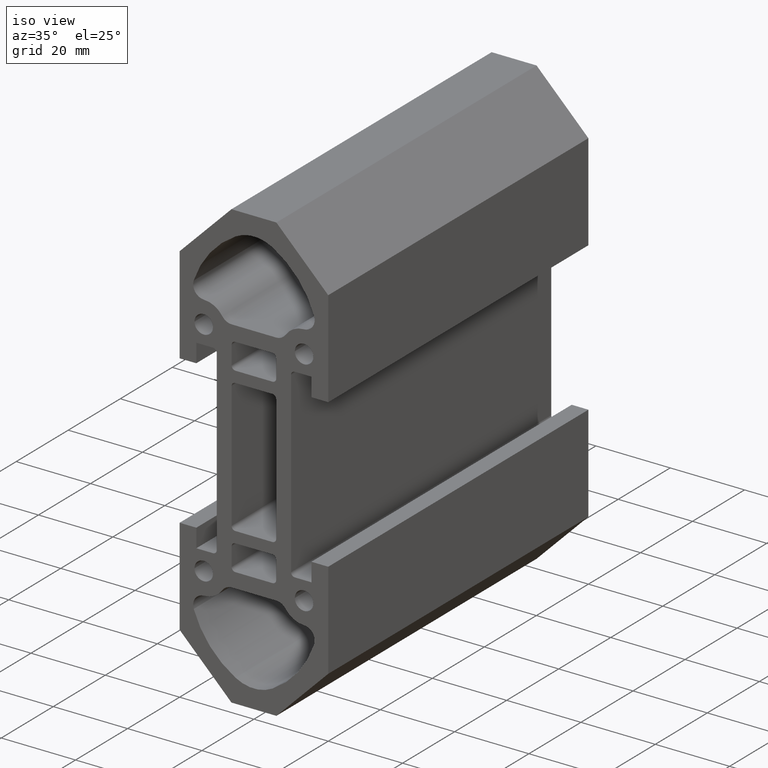
[diagram: clean part render]
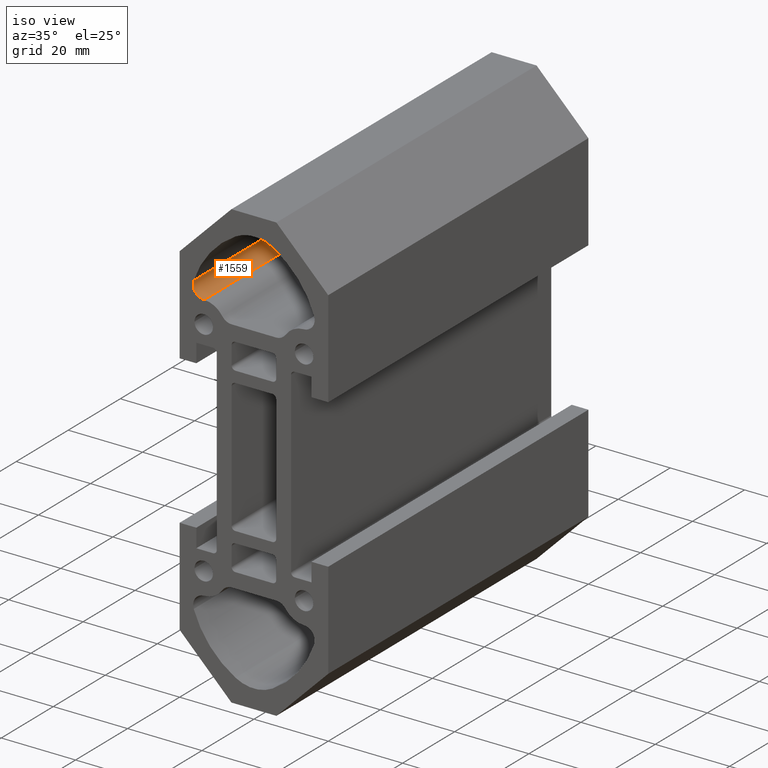
[diagram: same view with one face highlighted and labeled with its STEP entity id]
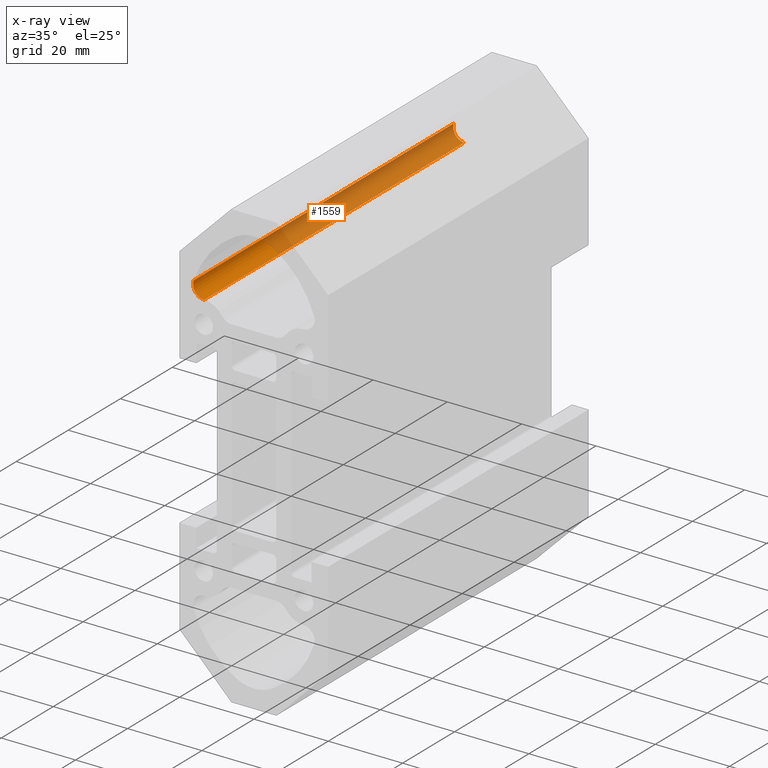
[diagram: x-ray of the same camera — body ghosted, the highlighted face saturated]
A machine part, iso view. The second image highlights one B-rep face of the part: STEP entity #1559.
The next image is the same camera in x-ray: the body ghosted, the highlighted face saturated — about 71% of this face is hidden behind the body in this view.
In plain terms, the highlighted cylindrical surface (edge-blend (fillet) strip) has radius 3 mm, axis along (0, 1, 0).
Its self-contained STEP definition (entity closure, byte-faithful):
#131=FACE_OUTER_BOUND('',#209,.T.);
#209=EDGE_LOOP('',(#1239,#1240,#1241,#1242));
#358=LINE('',#2577,#510);
#359=LINE('',#2583,#511);
#510=VECTOR('',#2115,10.);
#511=VECTOR('',#2122,10.);
#617=CIRCLE('',#1727,3.);
#618=CIRCLE('',#1728,3.);
#749=VERTEX_POINT('',#2574);
#750=VERTEX_POINT('',#2576);
#751=VERTEX_POINT('',#2580);
#752=VERTEX_POINT('',#2582);
#955=EDGE_CURVE('',#749,#750,#358,.T.);
#957=EDGE_CURVE('',#751,#749,#617,.T.);
#958=EDGE_CURVE('',#751,#752,#359,.T.);
#959=EDGE_CURVE('',#750,#752,#618,.T.);
#1239=ORIENTED_EDGE('',*,*,#957,.F.);
#1240=ORIENTED_EDGE('',*,*,#958,.T.);
#1241=ORIENTED_EDGE('',*,*,#959,.F.);
#1242=ORIENTED_EDGE('',*,*,#955,.F.);
#1496=CYLINDRICAL_SURFACE('',#1726,3.);
#1559=ADVANCED_FACE('',(#131),#1496,.F.);
#1726=AXIS2_PLACEMENT_3D('',#2579,#2118,#2119);
#1727=AXIS2_PLACEMENT_3D('',#2581,#2120,#2121);
#1728=AXIS2_PLACEMENT_3D('',#2584,#2123,#2124);
#2115=DIRECTION('',(0.,1.,0.));
#2118=DIRECTION('center_axis',(0.,1.,0.));
#2119=DIRECTION('ref_axis',(-0.0158850325482159,0.,-0.999873824910394));
#2120=DIRECTION('center_axis',(0.,1.,0.));
#2121=DIRECTION('ref_axis',(-0.0158850325482159,0.,-0.999873824910394));
#2122=DIRECTION('',(0.,1.,0.));
#2123=DIRECTION('center_axis',(0.,-1.,0.));
#2124=DIRECTION('ref_axis',(-0.0158850325482159,0.,-0.999873824910394));
#2574=CARTESIAN_POINT('',(-16.2011758034841,0.,39.9532550274927));
#2576=CARTESIAN_POINT('',(-16.2011758034841,100.,39.9532550274927));
#2577=CARTESIAN_POINT('',(-16.2011758034841,0.,39.9532550274927));
#2579=CARTESIAN_POINT('Origin',(-13.3570347070661,0.,38.9988644241936));
#2580=CARTESIAN_POINT('',(-13.4046898047107,0.,35.9992429494624));
#2581=CARTESIAN_POINT('Origin',(-13.3570347070661,0.,38.9988644241936));
#2582=CARTESIAN_POINT('',(-13.4046898047107,100.,35.9992429494624));
#2583=CARTESIAN_POINT('',(-13.4046898047107,0.,35.9992429494624));
#2584=CARTESIAN_POINT('Origin',(-13.3570347070661,100.,38.9988644241936));